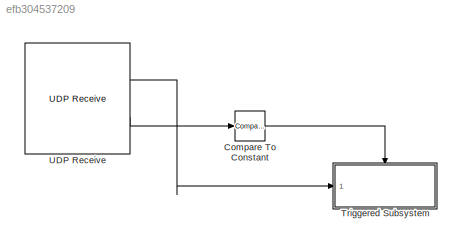
MODEL slx_efb304537209
KIND model
CONFIG InitFcn = Ts=0.025;
BLOCK [Reference] Compare To Constant  REF=simulink/Logic and Bit
Operations/Compare
To Constant
  OutDataTypeStr = boolean
  Ports = [1, 1]
  SourceBlock = simulink/Logic and Bit\nOperations/Compare\nTo Constant
  SourceType = Compare To Constant
  ZeroCross = on
  const = 0
  relop = >
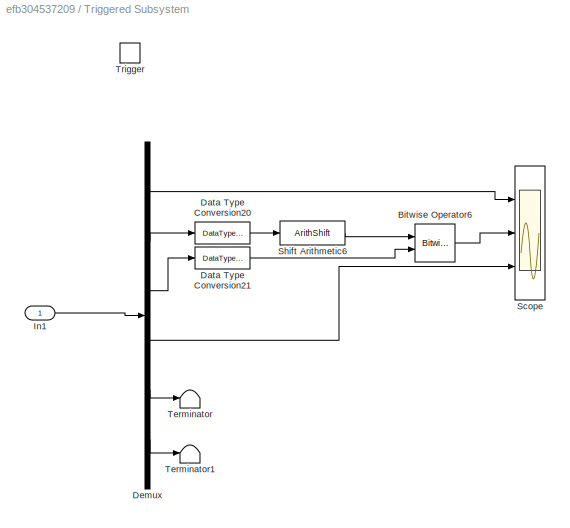
BLOCK [SubSystem] Triggered Subsystem
  Ports = [1, 0, 0, 1]
  RequestExecContextInheritance = off
  TreatAsAtomicUnit = on
BLOCK [Reference] Triggered Subsystem/Bitwise Operator6  REF=simulink/Logic and Bit
Operations/Bitwise
Operator
  BitMask = bin2dec('11011001')
  BitMaskRealWorld = Stored Integer
  NumInputPorts = 2
  Ports = [2, 1]
  SourceBlock = simulink/Logic and Bit\nOperations/Bitwise\nOperator
  SourceType = Bitwise Operator
  UseBitMask = off
  logicop = OR
BLOCK [DataTypeConversion] Triggered Subsystem/Data Type Conversion20
  OutDataTypeStr = int16
  RndMeth = Floor
  SaturateOnIntegerOverflow = off
BLOCK [DataTypeConversion] Triggered Subsystem/Data Type Conversion21
  OutDataTypeStr = int16
  RndMeth = Floor
  SaturateOnIntegerOverflow = off
BLOCK [Demux] Triggered Subsystem/Demux
  DisplayOption = bar
  Outputs = 6
  Ports = [1, 6]
BLOCK [Inport] Triggered Subsystem/In1
  IconDisplay = Port number
BLOCK [Scope] Triggered Subsystem/Scope
  Floating = off
  NumInputPorts = 3
  Ports = [3]
  ShowLegends = off
  TimeRange = 10000
  YMax = 101~361~300
  YMin = 99~0~0
BLOCK [ArithShift] Triggered Subsystem/Shift Arithmetic6
  BitShiftDirection = Left
  BitShiftNumber = 8
  InputPortMap = u0
  Ports = [1, 1]
BLOCK [Terminator] Triggered Subsystem/Terminator
BLOCK [Terminator] Triggered Subsystem/Terminator1
BLOCK [TriggerPort] Triggered Subsystem/Trigger
  Ports = []
  StatesWhenEnabling = held
BLOCK [Reference] UDP Receive  REF=dspnetwork/UDP Receive
  Ports = [0, 2]
  SourceBlock = dspnetwork/UDP Receive
  SourceType = UDP Receive
  blockingTime = 0
  dims = 6
  isVarSize = off
  localPort = 7500
  localURL = '0.0.0.0'
  recvBufferSize = 1024
  remotePort = -1
  remoteURL = '192.168.7.2'
  sampletime = 0.025
  showBlockingTime = off
  signalDatatype = uint8
LINE Compare To Constant:1 -> Triggered Subsystem:trigger
LINE Triggered Subsystem/Bitwise Operator6:1 -> Triggered Subsystem/Scope:2
LINE Triggered Subsystem/Data Type Conversion20:1 -> Triggered Subsystem/Shift Arithmetic6:1
LINE Triggered Subsystem/Data Type Conversion21:1 -> Triggered Subsystem/Bitwise Operator6:2
LINE Triggered Subsystem/Demux:1 -> Triggered Subsystem/Scope:1
LINE Triggered Subsystem/Demux:2 -> Triggered Subsystem/Data Type Conversion20:1
LINE Triggered Subsystem/Demux:3 -> Triggered Subsystem/Data Type Conversion21:1
LINE Triggered Subsystem/Demux:4 -> Triggered Subsystem/Scope:3
LINE Triggered Subsystem/Demux:5 -> Triggered Subsystem/Terminator:1
LINE Triggered Subsystem/Demux:6 -> Triggered Subsystem/Terminator1:1
LINE Triggered Subsystem/In1:1 -> Triggered Subsystem/Demux:1
LINE Triggered Subsystem/Shift Arithmetic6:1 -> Triggered Subsystem/Bitwise Operator6:1
LINE UDP Receive:1 -> Triggered Subsystem:1
LINE UDP Receive:2 -> Compare To Constant:1
